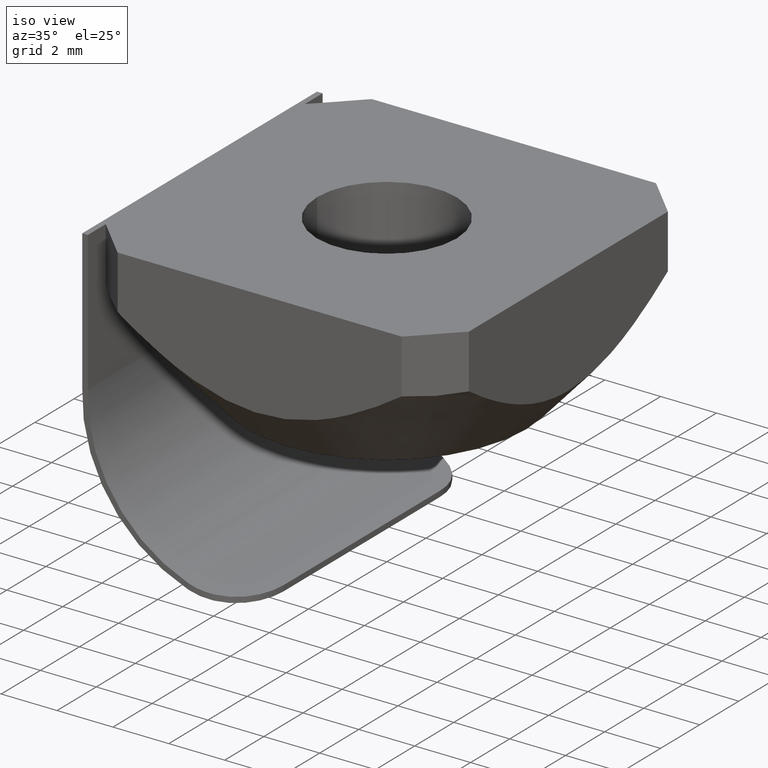
[diagram: clean part render]
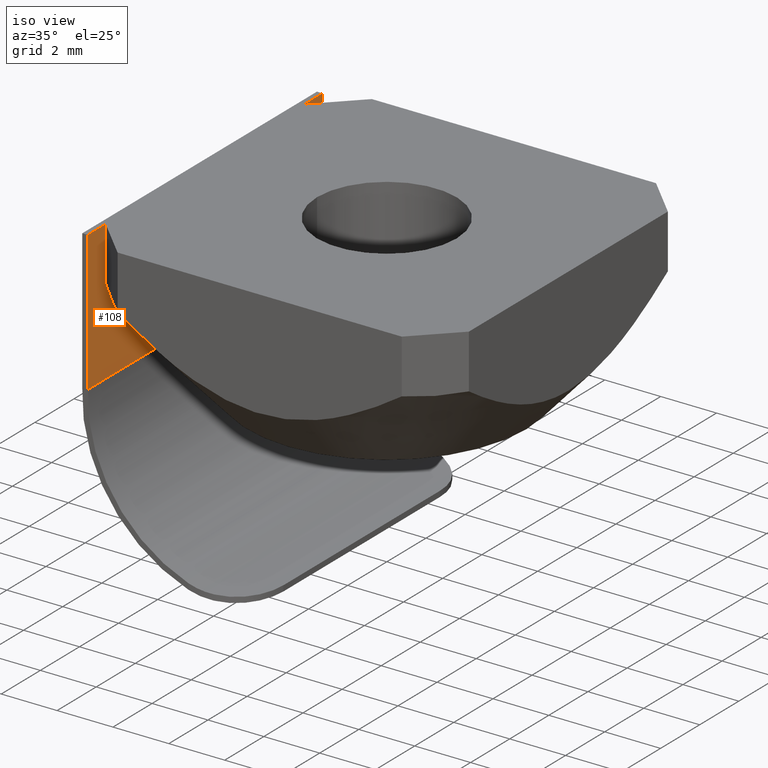
[diagram: same view with one face highlighted and labeled with its STEP entity id]
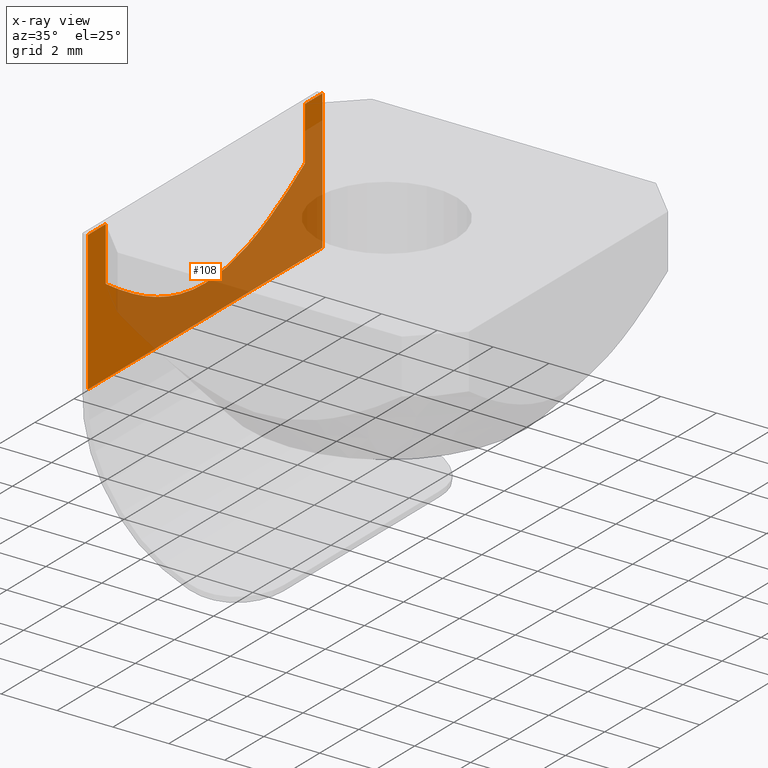
[diagram: x-ray of the same camera — body ghosted, the highlighted face saturated]
A machine part, iso view. The second image highlights one B-rep face of the part: STEP entity #108.
The next image is the same camera in x-ray: the body ghosted, the highlighted face saturated — about 68% of this face is hidden behind the body in this view.
In plain terms, the highlighted planar face has unit normal (1, -0, 0).
Its self-contained STEP definition (entity closure, byte-faithful):
#3 = LINE ( 'NONE', #715, #709 ) ;
#34 = CARTESIAN_POINT ( 'NONE',  ( -6.500000000000001776, 6.000000000000000888, 0.0000000000000000000 ) ) ;
#35 = CARTESIAN_POINT ( 'NONE',  ( -6.500000000000000888, 3.064398180133085755E-15, -3.855463141347039269 ) ) ;
#37 = VERTEX_POINT ( 'NONE', #708 ) ;
#42 = CARTESIAN_POINT ( 'NONE',  ( -6.499999993186322378, -5.085786460416152899, -1.933334192774046389 ) ) ;
#47 = LINE ( 'NONE', #356, #566 ) ;
#56 = CARTESIAN_POINT ( 'NONE',  ( -6.500000000000001776, 3.107041528813947462, -3.094886144136435480 ) ) ;
#63 = CARTESIAN_POINT ( 'NONE',  ( -6.500000000000000000, 5.085786390128566481, -1.933334234376848704 ) ) ;
#65 = CARTESIAN_POINT ( 'NONE',  ( -6.500000000000000888, 3.516244414295480958, -2.888242049458875194 ) ) ;
#78 = CARTESIAN_POINT ( 'NONE',  ( -6.500000000000000888, 6.000000000000000888, -4.999999999999999112 ) ) ;
#108 = ADVANCED_FACE ( 'NONE', ( #684 ), #791, .T. ) ;
#125 = VERTEX_POINT ( 'NONE', #719 ) ;
#127 = CARTESIAN_POINT ( 'NONE',  ( -6.500000000000000888, 0.0000000000000000000, 0.0000000000000000000 ) ) ;
#128 = CARTESIAN_POINT ( 'NONE',  ( -6.500000000000000888, 3.064398180133085755E-15, -3.855463141347039269 ) ) ;
#136 = ORIENTED_EDGE ( 'NONE', *, *, #565, .F. ) ;
#141 = EDGE_CURVE ( 'NONE', #125, #558, #397, .T. ) ;
#143 = LINE ( 'NONE', #760, #498 ) ;
#145 = CARTESIAN_POINT ( 'NONE',  ( -6.500000000000000000, 0.4651317998288859723, -3.855463141347039269 ) ) ;
#147 = ORIENTED_EDGE ( 'NONE', *, *, #520, .F. ) ;
#181 = CARTESIAN_POINT ( 'NONE',  ( -6.499999999966563635, -4.703623663799145760, -2.191522623682523818 ) ) ;
#188 = ORIENTED_EDGE ( 'NONE', *, *, #569, .T. ) ;
#192 = CARTESIAN_POINT ( 'NONE',  ( -6.500000000000000000, 1.815600802417214776, -3.598271844878063952 ) ) ;
#205 = CARTESIAN_POINT ( 'NONE',  ( -6.500000000000000000, -0.9207822221066512824, -3.800343511899493265 ) ) ;
#243 = DIRECTION ( 'NONE',  ( 0.0000000000000000000, 0.0000000000000000000, -1.000000000000000000 ) ) ;
#248 = VERTEX_POINT ( 'NONE', #268 ) ;
#263 = LINE ( 'NONE', #734, #707 ) ;
#268 = CARTESIAN_POINT ( 'NONE',  ( -6.500000000000001776, -6.000000000000000888, 0.0000000000000000000 ) ) ;
#270 = EDGE_CURVE ( 'NONE', #474, #430, #143, .T. ) ;
#283 = DIRECTION ( 'NONE',  ( -0.0000000000000000000, -0.0000000000000000000, 1.000000000000000000 ) ) ;
#312 = ORIENTED_EDGE ( 'NONE', *, *, #270, .T. ) ;
#323 = CARTESIAN_POINT ( 'NONE',  ( -6.500000000000000888, 0.0000000000000000000, -4.999999999999999112 ) ) ;
#326 = DIRECTION ( 'NONE',  ( -0.0000000000000000000, -1.000000000000000000, -0.0000000000000000000 ) ) ;
#327 = DIRECTION ( 'NONE',  ( 1.000000000000000000, -0.0000000000000000000, 0.0000000000000000000 ) ) ;
#340 = ORIENTED_EDGE ( 'NONE', *, *, #841, .T. ) ;
#348 = VECTOR ( 'NONE', #326, 1000.000000000000000 ) ;
#356 = CARTESIAN_POINT ( 'NONE',  ( -6.500000000000000888, 0.0000000000000000000, -4.999999999999999112 ) ) ;
#379 = ORIENTED_EDGE ( 'NONE', *, *, #722, .F. ) ;
#390 = LINE ( 'NONE', #127, #348 ) ;
#394 = VERTEX_POINT ( 'NONE', #440 ) ;
#397 = B_SPLINE_CURVE_WITH_KNOTS ( 'NONE', 3,
 ( #42, #181, #819, #673, #668, #593, #410, #205, #735, #128 ),
 .UNSPECIFIED., .F., .F.,
 ( 4, 2, 2, 2, 4 ),
 ( 1.371897704505000388E-11, 0.001375070637910661081, 0.002750141262102344820, 0.004125211886294029642, 0.005500282510485713164 ),
 .UNSPECIFIED. ) ;
#407 = CARTESIAN_POINT ( 'NONE',  ( -6.500000000000000888, 3.064398180133085755E-15, -3.855463141347039269 ) ) ;
#410 = CARTESIAN_POINT ( 'NONE',  ( -6.500000000000000888, -1.815724355571117998, -3.598234518682033478 ) ) ;
#411 = CARTESIAN_POINT ( 'NONE',  ( -6.500000000000000000, 5.085786390128566481, -1.933334234376848704 ) ) ;
#415 = VERTEX_POINT ( 'NONE', #567 ) ;
#422 = DIRECTION ( 'NONE',  ( 0.0000000000000000000, 1.000000000000000000, 0.0000000000000000000 ) ) ;
#430 = VERTEX_POINT ( 'NONE', #503 ) ;
#440 = CARTESIAN_POINT ( 'NONE',  ( -6.500000000000001776, -5.085786437626905965, 0.0000000000000000000 ) ) ;
#459 = DIRECTION ( 'NONE',  ( 0.0000000000000000000, 0.0000000000000000000, 1.000000000000000000 ) ) ;
#474 = VERTEX_POINT ( 'NONE', #34 ) ;
#498 = VECTOR ( 'NONE', #833, 1000.000000000000000 ) ;
#501 = EDGE_CURVE ( 'NONE', #248, #37, #3, .T. ) ;
#503 = CARTESIAN_POINT ( 'NONE',  ( -6.499999999999999112, 5.085786437626910406, 0.0000000000000000000 ) ) ;
#520 = EDGE_CURVE ( 'NONE', #558, #662, #661, .T. ) ;
#522 = LINE ( 'NONE', #538, #584 ) ;
#524 = CARTESIAN_POINT ( 'NONE',  ( -6.500000000000000000, 4.314560767063976066, -2.436628929867394877 ) ) ;
#525 = ORIENTED_EDGE ( 'NONE', *, *, #632, .T. ) ;
#532 = CARTESIAN_POINT ( 'NONE',  ( -6.500000000000000888, 2.258115939526438520, -3.449951148689369695 ) ) ;
#538 = CARTESIAN_POINT ( 'NONE',  ( -6.500000000000000888, -5.085786437626906853, 0.0000000000000000000 ) ) ;
#558 = VERTEX_POINT ( 'NONE', #407 ) ;
#565 = EDGE_CURVE ( 'NONE', #662, #430, #263, .T. ) ;
#566 = VECTOR ( 'NONE', #422, 1000.000000000000000 ) ;
#567 = CARTESIAN_POINT ( 'NONE',  ( -6.500000000000000888, 6.000000000000000888, -5.000000000000007105 ) ) ;
#569 = EDGE_CURVE ( 'NONE', #394, #248, #390, .T. ) ;
#584 = VECTOR ( 'NONE', #613, 1000.000000000000000 ) ;
#593 = CARTESIAN_POINT ( 'NONE',  ( -6.500000000000001776, -2.258188599350608339, -3.449924588806682735 ) ) ;
#596 = CARTESIAN_POINT ( 'NONE',  ( -6.500000000000000888, 4.703607865908491448, -2.191533292728968352 ) ) ;
#613 = DIRECTION ( 'NONE',  ( -0.0000000000000000000, -0.0000000000000000000, -1.000000000000000000 ) ) ;
#621 = VECTOR ( 'NONE', #283, 1000.000000000000000 ) ;
#632 = EDGE_CURVE ( 'NONE', #415, #474, #874, .T. ) ;
#651 = AXIS2_PLACEMENT_3D ( 'NONE', #323, #327, #654 ) ;
#654 = DIRECTION ( 'NONE',  ( 0.0000000000000000000, 0.0000000000000000000, -1.000000000000000000 ) ) ;
#656 = CARTESIAN_POINT ( 'NONE',  ( -6.500000000000001776, 0.9206392489088874864, -3.800366373796787656 ) ) ;
#661 = B_SPLINE_CURVE_WITH_KNOTS ( 'NONE', 3,
 ( #35, #145, #656, #192, #532, #56, #65, #524, #596, #63 ),
 .UNSPECIFIED., .F., .F.,
 ( 4, 2, 2, 2, 4 ),
 ( 0.005500282510485713164, 0.006875464031092158763, 0.008250645551698604363, 0.009625827072305050830, 0.01100100859291149556 ),
 .UNSPECIFIED. ) ;
#662 = VERTEX_POINT ( 'NONE', #411 ) ;
#668 = CARTESIAN_POINT ( 'NONE',  ( -6.500000000000000888, -3.107104350552365002, -3.094856037944705207 ) ) ;
#673 = CARTESIAN_POINT ( 'NONE',  ( -6.500000000000000000, -3.516297880510937723, -2.888213568672117315 ) ) ;
#684 = FACE_OUTER_BOUND ( 'NONE', #858, .T. ) ;
#707 = VECTOR ( 'NONE', #459, 1000.000000000000000 ) ;
#708 = CARTESIAN_POINT ( 'NONE',  ( -6.500000000000000888, -6.000000000000000888, -5.000000000000007105 ) ) ;
#709 = VECTOR ( 'NONE', #243, 1000.000000000000000 ) ;
#715 = CARTESIAN_POINT ( 'NONE',  ( -6.500000000000000888, -6.000000000000000888, -4.999999999999999112 ) ) ;
#719 = CARTESIAN_POINT ( 'NONE',  ( -6.499999993186322378, -5.085786460416152899, -1.933334192774046389 ) ) ;
#722 = EDGE_CURVE ( 'NONE', #394, #125, #522, .T. ) ;
#733 = ORIENTED_EDGE ( 'NONE', *, *, #501, .T. ) ;
#734 = CARTESIAN_POINT ( 'NONE',  ( -6.499999999999999112, 5.085786437626910406, 0.0000000000000000000 ) ) ;
#735 = CARTESIAN_POINT ( 'NONE',  ( -6.500000000000000888, -0.4650942909995222085, -3.855463141347039269 ) ) ;
#760 = CARTESIAN_POINT ( 'NONE',  ( -6.500000000000000888, 0.0000000000000000000, 0.0000000000000000000 ) ) ;
#791 = PLANE ( 'NONE',  #651 ) ;
#819 = CARTESIAN_POINT ( 'NONE',  ( -6.500000000000002665, -4.314590746540053701, -2.436610204660846879 ) ) ;
#833 = DIRECTION ( 'NONE',  ( -0.0000000000000000000, -1.000000000000000000, -0.0000000000000000000 ) ) ;
#841 = EDGE_CURVE ( 'NONE', #37, #415, #47, .T. ) ;
#848 = ORIENTED_EDGE ( 'NONE', *, *, #141, .F. ) ;
#858 = EDGE_LOOP ( 'NONE', ( #136, #147, #848, #379, #188, #733, #340, #525, #312 ) ) ;
#874 = LINE ( 'NONE', #78, #621 ) ;